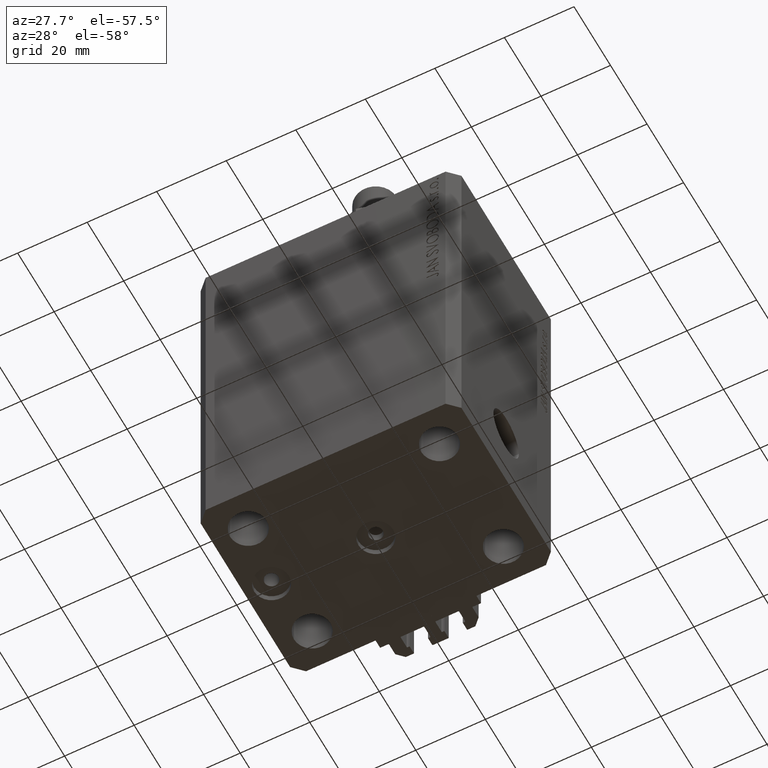
[diagram: clean part render]
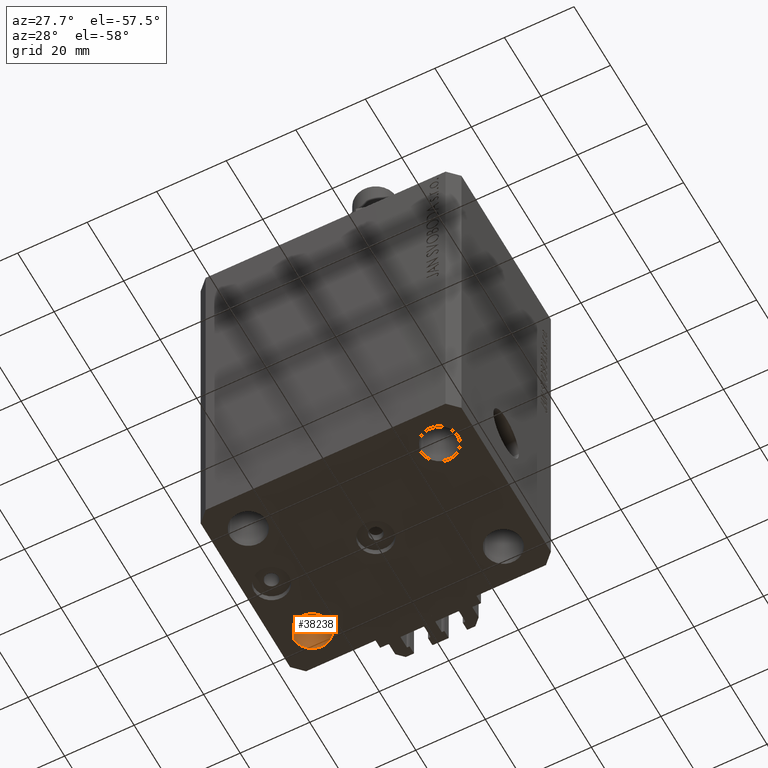
[diagram: same view with one face highlighted and labeled with its STEP entity id]
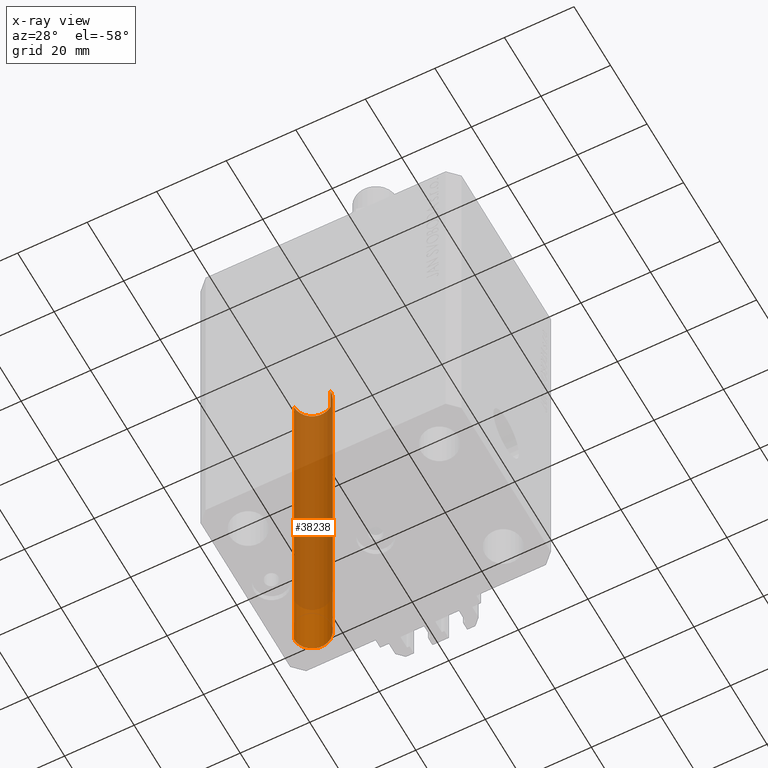
[diagram: x-ray of the same camera — body ghosted, the highlighted face saturated]
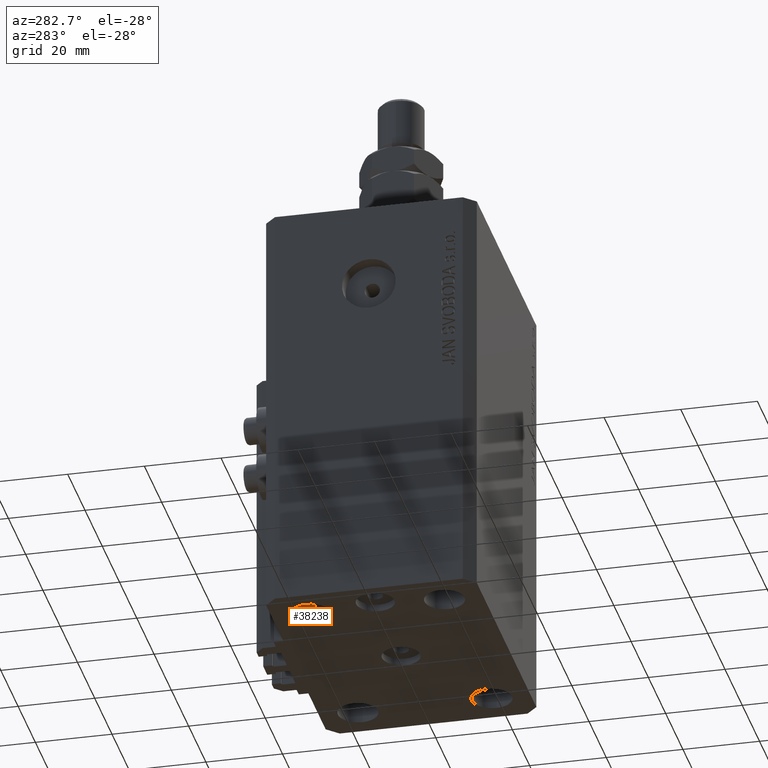
[diagram: same view with one face highlighted and labeled with its STEP entity id]
A machine part, auxiliary view. The second image highlights one B-rep face of the part: STEP entity #38238.
The next image is the same camera in x-ray: the body ghosted, the highlighted face saturated — about 83% of this face is hidden behind the body in this view.
A second angle (auxiliary view) of the same face is appended — the face is thin or edge-on in the first view.
In plain terms, the highlighted cylindrical surface (edge-blend (fillet) strip) has radius 5.25 mm, axis along (0, 0, 1).
Its self-contained STEP definition (entity closure, byte-faithful):
#1247 = CARTESIAN_POINT ( 'NONE',  ( -27.50000000000000000, 17.49999999999999645, -110.0000000000000000 ) ) ;
#6613 = EDGE_LOOP ( 'NONE', ( #15144, #26153, #15812, #10899 ) ) ;
#7663 = CARTESIAN_POINT ( 'NONE',  ( -27.50000000000000000, 17.49999999999999645, 0.000000000000000000 ) ) ;
#7946 = DIRECTION ( 'NONE',  ( -0.000000000000000000, -0.000000000000000000, -1.000000000000000000 ) ) ;
#8640 = DIRECTION ( 'NONE',  ( 1.000000000000000000, 0.000000000000000000, 0.000000000000000000 ) ) ;
#10161 = VERTEX_POINT ( 'NONE', #36813 ) ;
#10536 = CARTESIAN_POINT ( 'NONE',  ( -27.50000000000000000, 17.49999999999999645, -124.8492424049175042 ) ) ;
#10832 = DIRECTION ( 'NONE',  ( -0.000000000000000000, -0.000000000000000000, 1.000000000000000000 ) ) ;
#10899 = ORIENTED_EDGE ( 'NONE', *, *, #48601, .T. ) ;
#11081 = CARTESIAN_POINT ( 'NONE',  ( -32.75000000000000000, 17.49999999999999645, -124.8492424049175042 ) ) ;
#11171 = LINE ( 'NONE', #33907, #25550 ) ;
#12096 = DIRECTION ( 'NONE',  ( 0.000000000000000000, 0.000000000000000000, 1.000000000000000000 ) ) ;
#13281 = DIRECTION ( 'NONE',  ( 1.000000000000000000, 0.000000000000000000, 0.000000000000000000 ) ) ;
#14222 = CYLINDRICAL_SURFACE ( 'NONE', #39658, 5.250000000000000888 ) ;
#14518 = CARTESIAN_POINT ( 'NONE',  ( -22.25000000000000000, 17.49999999999999645, 0.000000000000000000 ) ) ;
#15144 = ORIENTED_EDGE ( 'NONE', *, *, #37139, .F. ) ;
#15812 = ORIENTED_EDGE ( 'NONE', *, *, #23958, .T. ) ;
#16507 = DIRECTION ( 'NONE',  ( -0.000000000000000000, -0.000000000000000000, 1.000000000000000000 ) ) ;
#18323 = DIRECTION ( 'NONE',  ( -0.000000000000000000, -0.000000000000000000, 1.000000000000000000 ) ) ;
#18600 = CARTESIAN_POINT ( 'NONE',  ( -22.25000000000000000, 17.49999999999999645, -110.0000000000000000 ) ) ;
#20909 = AXIS2_PLACEMENT_3D ( 'NONE', #7663, #12096, #8640 ) ;
#20922 = VERTEX_POINT ( 'NONE', #14518 ) ;
#21037 = CIRCLE ( 'NONE', #48697, 5.250000000000000888 ) ;
#22149 = EDGE_CURVE ( 'NONE', #26192, #40645, #21037, .T. ) ;
#23740 = DIRECTION ( 'NONE',  ( 1.000000000000000000, 0.000000000000000000, 0.000000000000000000 ) ) ;
#23958 = EDGE_CURVE ( 'NONE', #40645, #20922, #11171, .T. ) ;
#25550 = VECTOR ( 'NONE', #18323, 1000.000000000000000 ) ;
#26153 = ORIENTED_EDGE ( 'NONE', *, *, #22149, .T. ) ;
#26192 = VERTEX_POINT ( 'NONE', #45075 ) ;
#32523 = VECTOR ( 'NONE', #10832, 1000.000000000000000 ) ;
#33070 = LINE ( 'NONE', #11081, #32523 ) ;
#33907 = CARTESIAN_POINT ( 'NONE',  ( -22.25000000000000000, 17.49999999999999645, -124.8492424049175042 ) ) ;
#36679 = CIRCLE ( 'NONE', #20909, 5.250000000000000888 ) ;
#36813 = CARTESIAN_POINT ( 'NONE',  ( -32.75000000000000000, 17.49999999999999645, 0.000000000000000000 ) ) ;
#37139 = EDGE_CURVE ( 'NONE', #26192, #10161, #33070, .T. ) ;
#38238 = ADVANCED_FACE ( 'NONE', ( #48120 ), #14222, .F. ) ;
#39658 = AXIS2_PLACEMENT_3D ( 'NONE', #10536, #16507, #13281 ) ;
#40645 = VERTEX_POINT ( 'NONE', #18600 ) ;
#45075 = CARTESIAN_POINT ( 'NONE',  ( -32.75000000000000000, 17.49999999999999645, -110.0000000000000000 ) ) ;
#48120 = FACE_OUTER_BOUND ( 'NONE', #6613, .T. ) ;
#48601 = EDGE_CURVE ( 'NONE', #20922, #10161, #36679, .T. ) ;
#48697 = AXIS2_PLACEMENT_3D ( 'NONE', #1247, #7946, #23740 ) ;